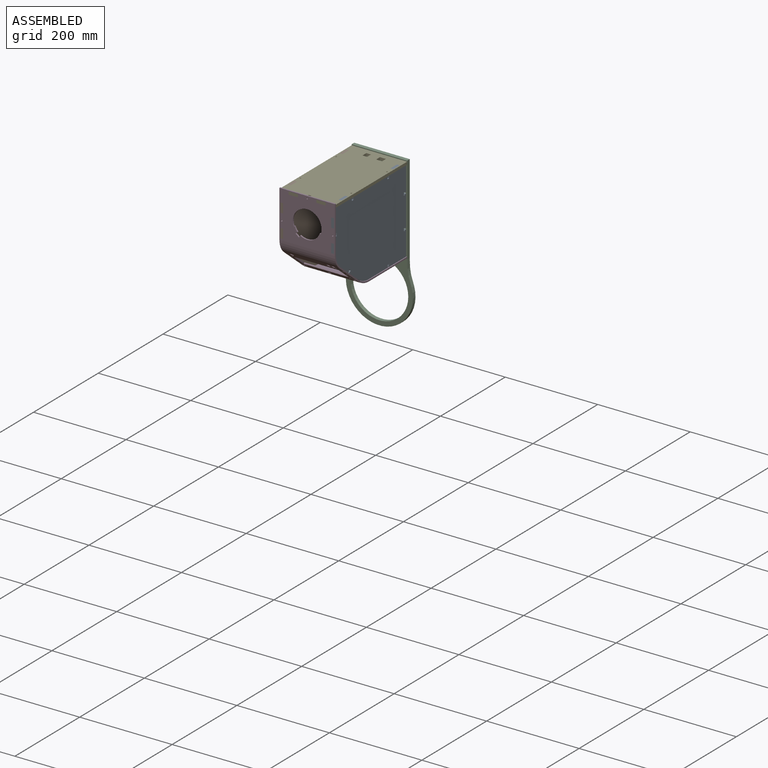
[diagram: assembled view]
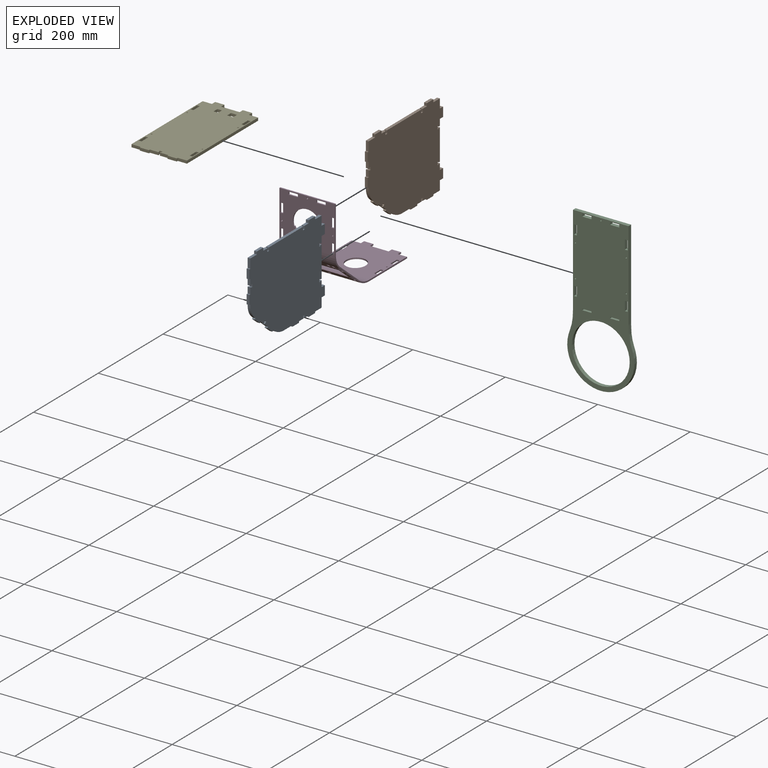
[diagram: exploded view]
GUIDED TOUR — MATED ASSEMBLY (Onshape document dd200ee3d19bba623b3a1f8c, AutoMate assembly dd200ee3d19bba623b3a1f8c_f7b9dfe9365630e57eda1b1d_85d5559fc0146a37507ad50d_default)

This assembly has 5 components, labeled P0..P4 below (a component is one placed occurrence of a part; the same part can appear more than once), held together by 12 mates. A mate is a constraint between two components; its type names the relative motion it leaves free:
  PLANAR — leaves sliding in the plane through the listed point (normal = the listed direction) and rotation about that normal free.
Axis/direction vectors are unit vectors and 'through' points are millimeter coordinates, both in the assembly's world frame.

MATES
  1. PLANAR "Planar 6": P4 <-> P1, direction (0.000, 0.000, -1.000) through (-156.96, -45.42, 177.71) mm
  2. PLANAR "Planar 11": P0 <-> P2, direction (-1.000, 0.000, 0.000) through (-104.93, 64.20, 137.71) mm
  3. PLANAR "Planar 12": P3 <-> P0, direction (0.000, 1.000, 0.000) through (-156.83, -155.80, 136.07) mm
  4. PLANAR "Planar 4": P4 <-> P0, direction (0.000, 0.000, -1.000) through (-156.96, -45.42, 177.71) mm
  5. PLANAR "Planar 9": P3 <-> P1, direction (0.000, 0.000, 1.000) through (-211.93, -157.30, 137.71) mm
  6. PLANAR "Planar 2": P0 <-> P4, direction (0.000, 1.000, 0.000) through (-101.93, -115.80, 180.71) mm
  7. PLANAR "Planar 1": P1 <-> P4, direction (0.000, 1.000, 0.000) through (-211.93, -115.80, 180.71) mm
  8. PLANAR "Planar 8": P3 <-> P1, direction (-1.000, 0.000, 0.000) through (-208.93, -157.30, 147.71) mm
  9. PLANAR "Planar 5": P4 <-> P1, direction (-1.000, 0.000, 0.000) through (-208.93, -115.80, 183.71) mm
  10. PLANAR "Planar 3": P4 <-> P0, direction (-1.000, 0.000, 0.000) through (-98.93, -125.80, 180.71) mm
  11. PLANAR "Planar 10": P4 <-> P2, direction (0.000, 0.000, 1.000) through (-156.96, -45.42, 183.71) mm
  12. PLANAR "Planar 7": P4 <-> P2, direction (0.000, 1.000, 0.000) through (-106.93, 64.20, 180.71) mm

ASSEMBLY ORDER
  1. P3 — the base component [order verified]
  2. P4 [order verified]
  3. P2 [order verified]
  4. P0 [order verified]
  5. P1 [order verified]
Order-tag legend:
  [order verified] — this step's position reverses a verified removal order: the component was checked to insert without passing through the ones already placed.

Of the 5 components, 2 carry the full construction recipe — the FeatureScript program that regenerates the part's solid from scratch; the rest are supplied as boundary geometry only.
Each toured component is shown spotlighted twice — in the assembled view, then in the exploded view, where a leader line traces a displaced component back to its assembled socket (saturated green if recipe-attached, orange if geometry-only; every other component desaturated gray) — followed by its recipe or geometry summary and the mates that hold it.
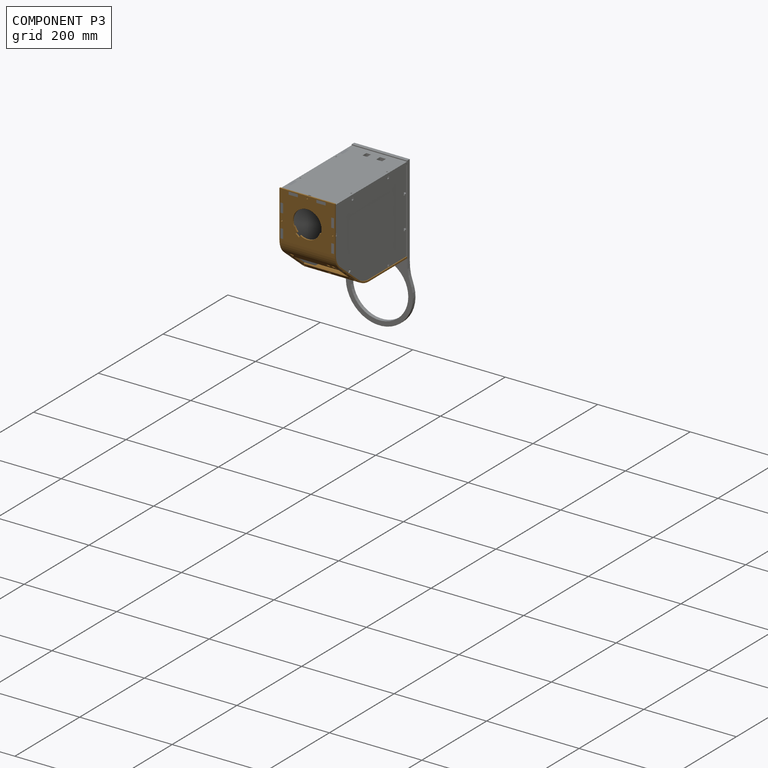
[diagram: component P3 — assembled]
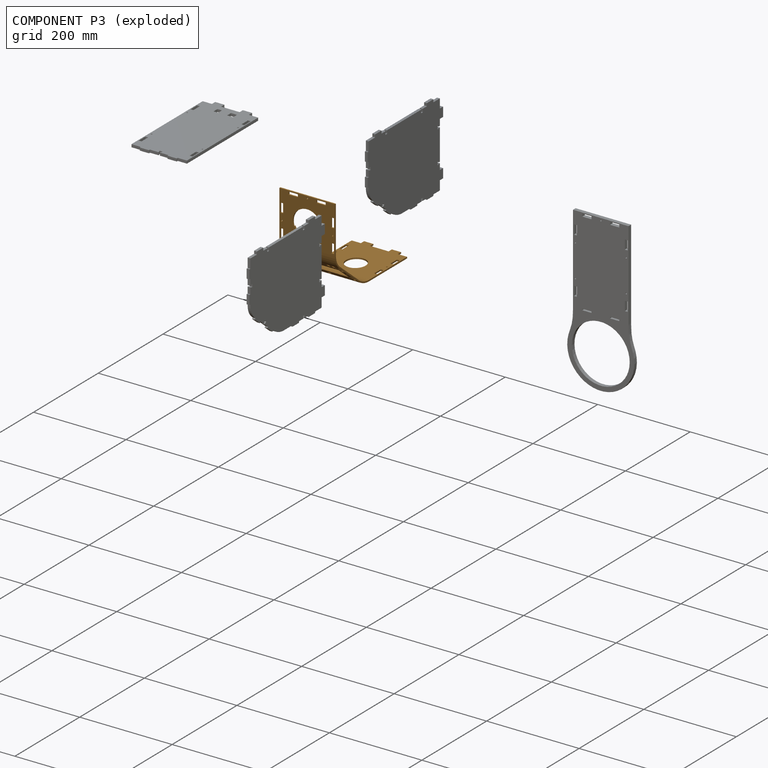
[diagram: component P3 — exploded]
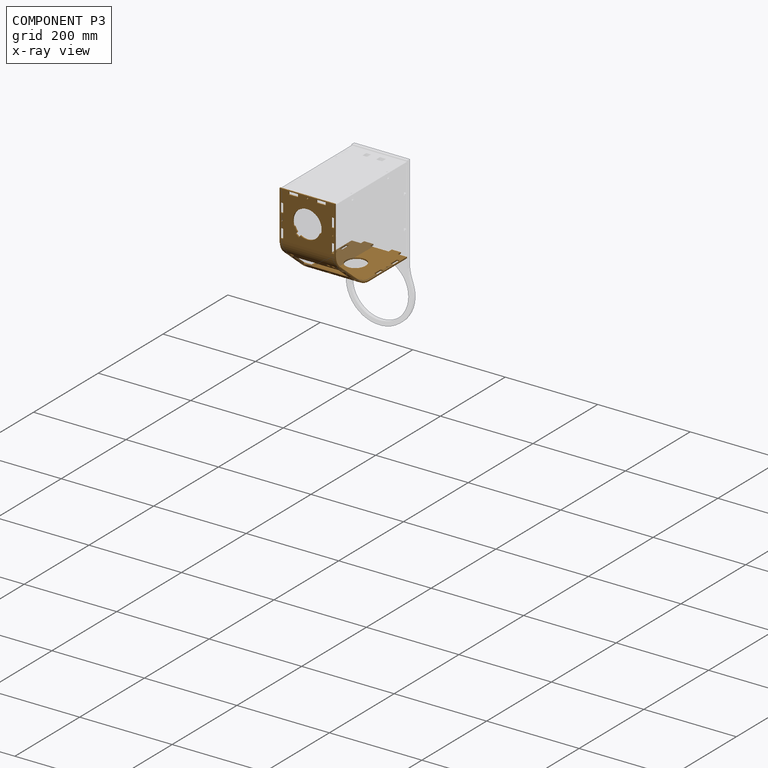
[diagram: component P3 — x-ray view]
COMPONENT P3 — geometry summary (no construction recipe available for this part):
  bounding box: 233.0 x 191.0 x 120.0 mm
  B-rep topology: 1 solid, 109 faces, 664 edges
  volume: 100900 mm^3 (2% of its bounding box)
  symmetry: mirror-symmetric across its y mid-plane
Held by: PLANAR mate "Planar 12" to P0; PLANAR mate "Planar 9" to P1; PLANAR mate "Planar 8" to P1.
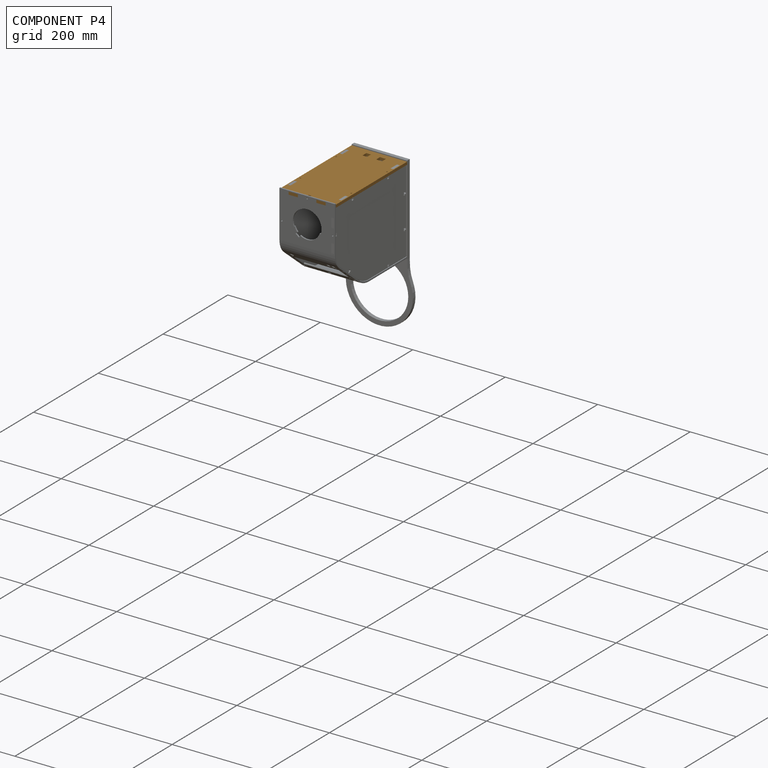
[diagram: component P4 — assembled]
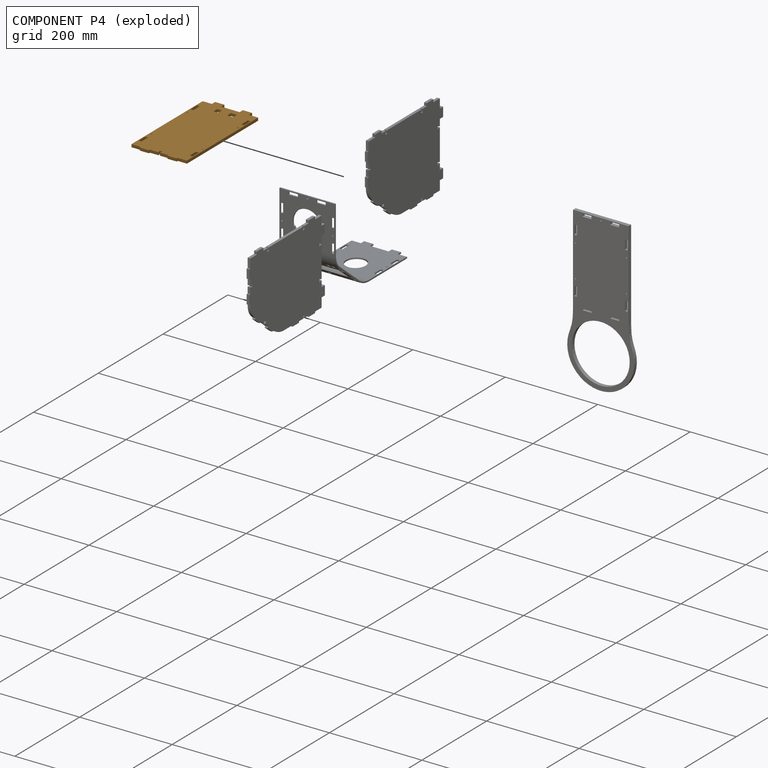
[diagram: component P4 — exploded]
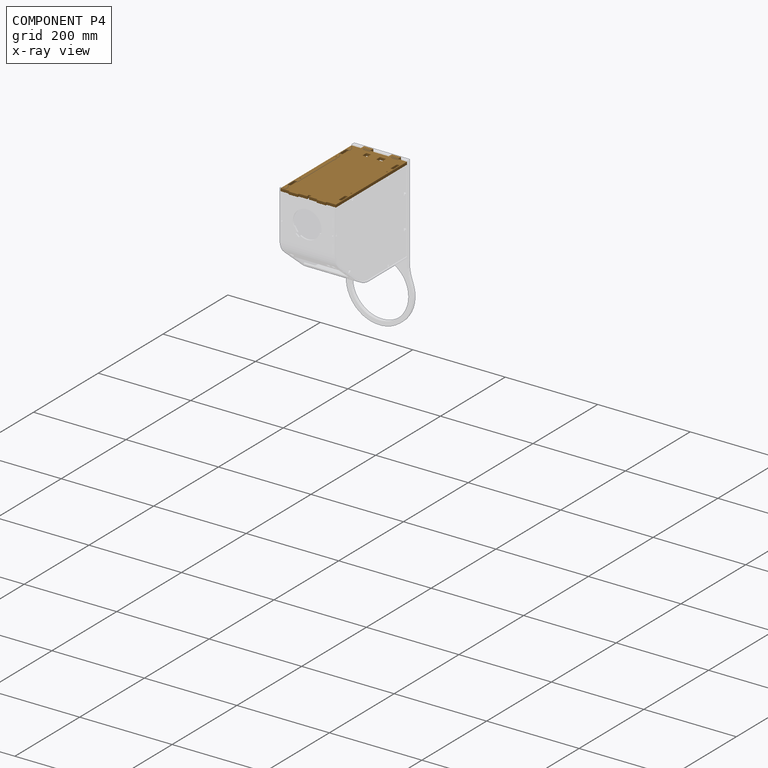
[diagram: component P4 — x-ray view]
COMPONENT P4 — geometry summary (no construction recipe available for this part):
  bounding box: 233.0 x 120.0 x 6.0 mm
  B-rep topology: 1 solid, 58 faces, 336 edges
  volume: 156654 mm^3 (93% of its bounding box)
  symmetry: mirror-symmetric across its y mid-plane
Held by: PLANAR mate "Planar 6" to P1; PLANAR mate "Planar 4" to P0; PLANAR mate "Planar 2" to P0; PLANAR mate "Planar 1" to P1; PLANAR mate "Planar 5" to P1; PLANAR mate "Planar 3" to P0; PLANAR mate "Planar 10" to P2; PLANAR mate "Planar 7" to P2.
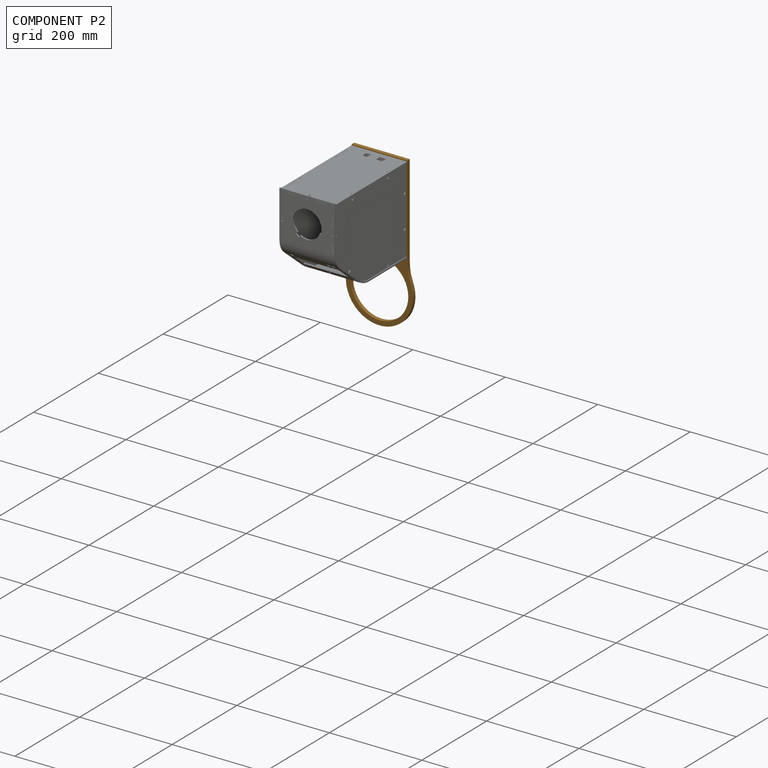
[diagram: component P2 — assembled]
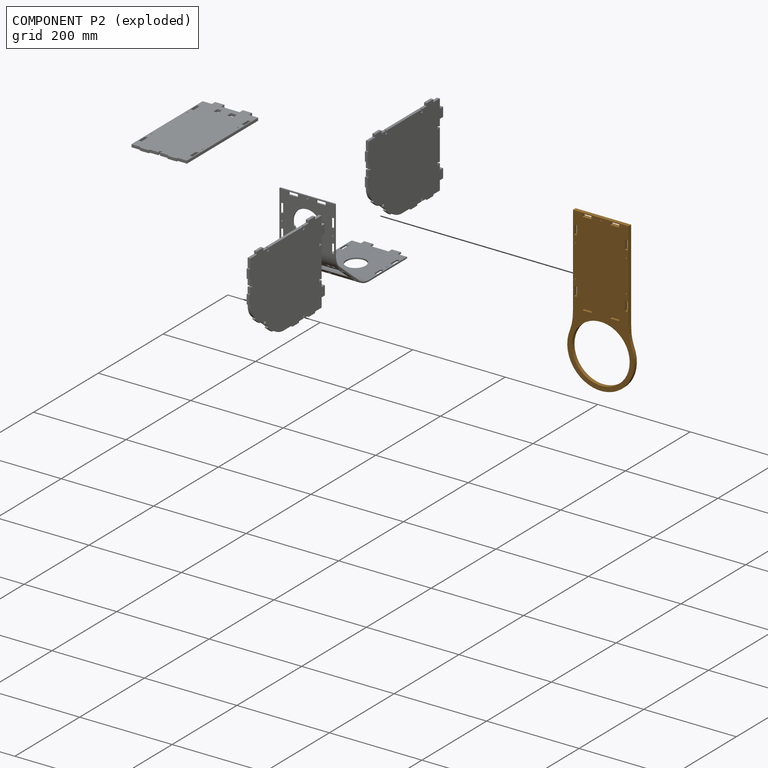
[diagram: component P2 — exploded]
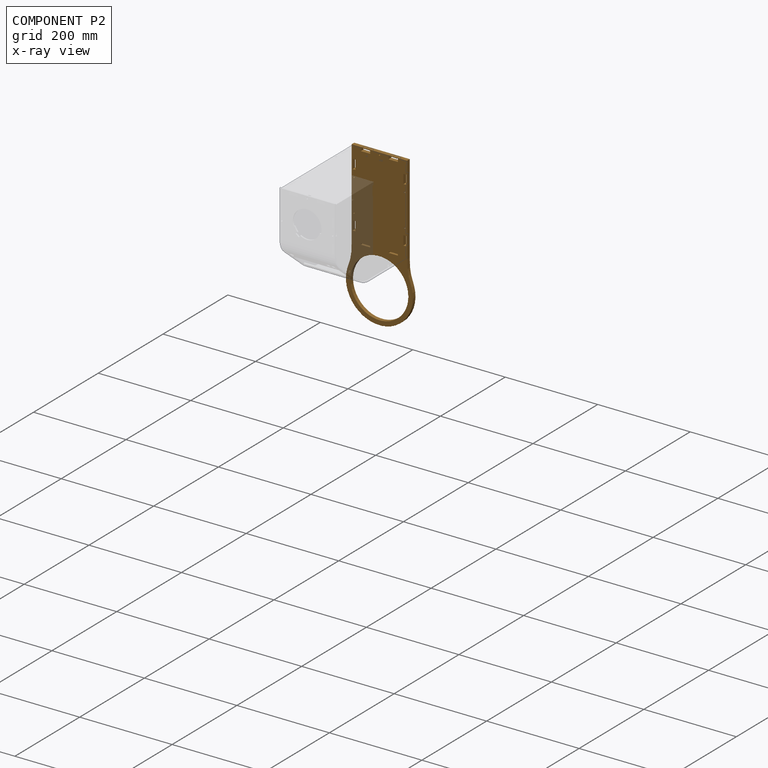
[diagram: component P2 — x-ray view]
COMPONENT P2 — geometry summary (no construction recipe available for this part):
  bounding box: 338.0 x 145.0 x 8.0 mm
  B-rep topology: 1 solid, 46 faces, 264 edges
  volume: 221985 mm^3 (57% of its bounding box)
  symmetry: 2-fold rotationally symmetric about the z axis; mirror-symmetric across its x mid-plane, y mid-plane
Held by: PLANAR mate "Planar 11" to P0; PLANAR mate "Planar 10" to P4; PLANAR mate "Planar 7" to P4.
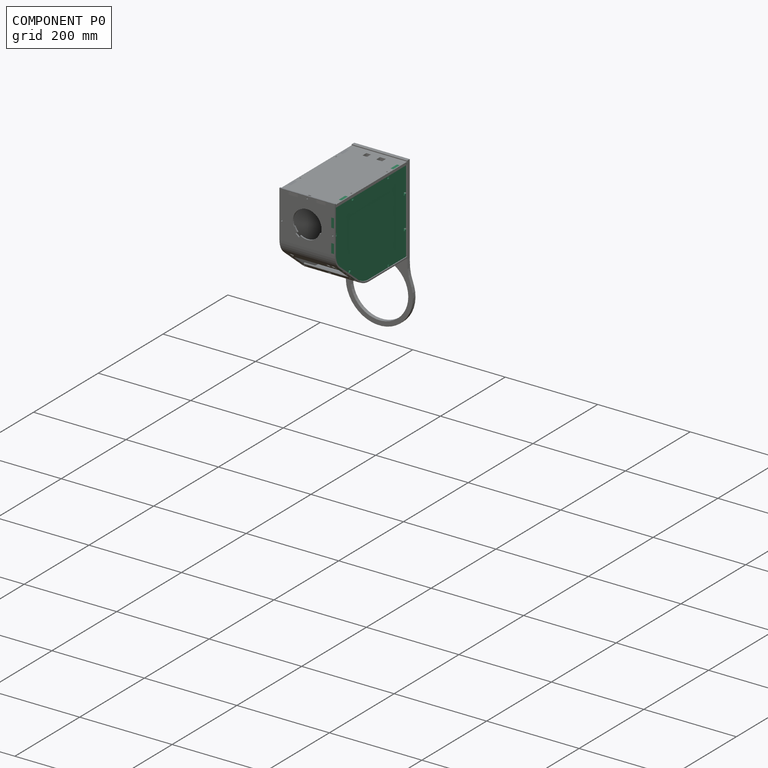
[diagram: component P0 — assembled]
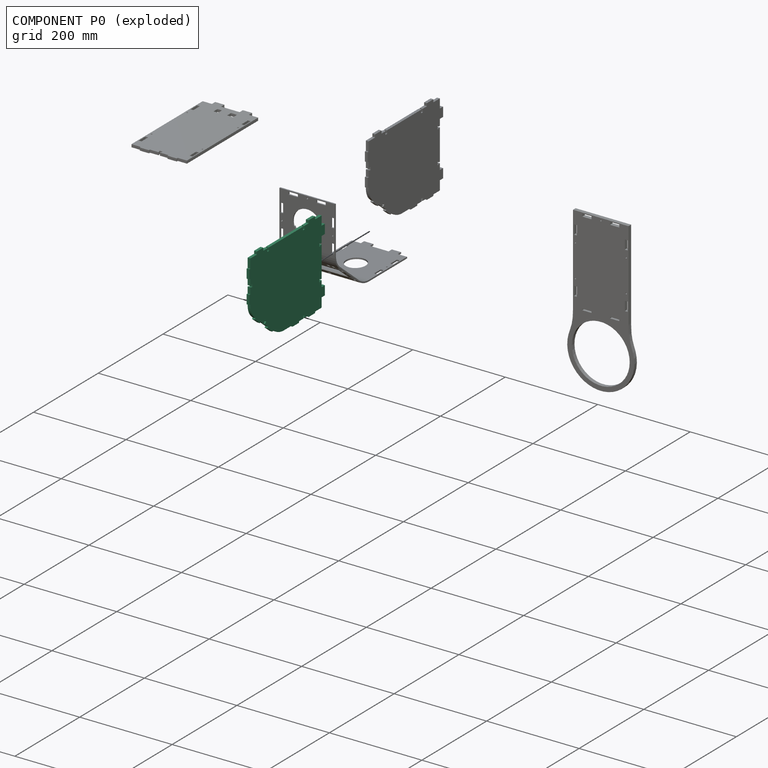
[diagram: component P0 — exploded]
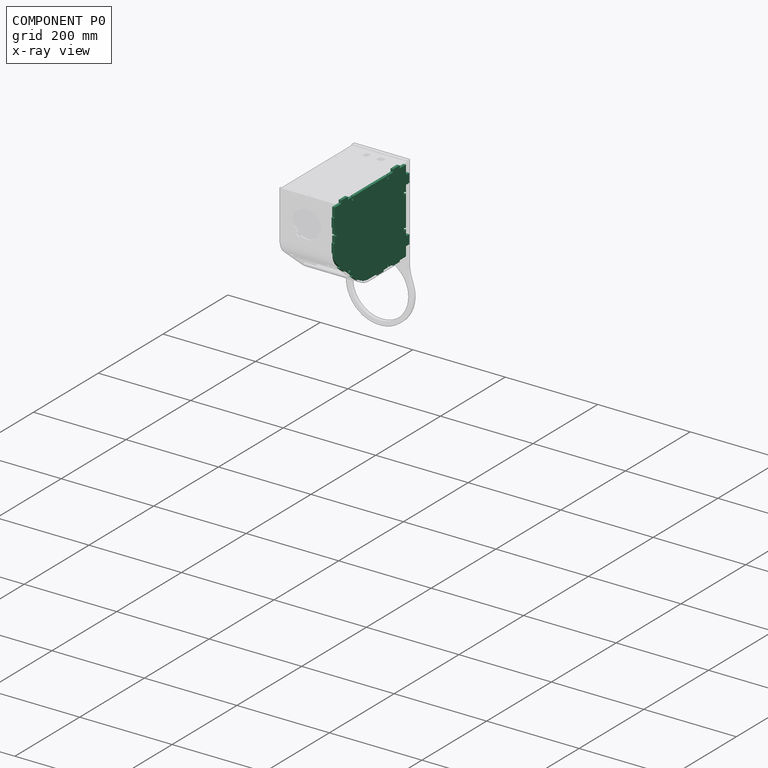
[diagram: component P0 — x-ray view]
COMPONENT P0 — recipe-attached (CADFS 00138585, mesh-verified: the recipe's output STEP matches this component's geometry to below the mesh-comparison resolution (tessellation chordal tolerance ~0.45 mm)).
Held by: PLANAR mate "Planar 11" to P2; PLANAR mate "Planar 12" to P3; PLANAR mate "Planar 4" to P4; PLANAR mate "Planar 2" to P4; PLANAR mate "Planar 3" to P4.
Construction recipe (FeatureScript — the CAD program that rebuilds this solid; sketch coordinates are in the units given by the * unit suffixes, e.g. mm):

FeatureScript 1758;
import(path : "onshape/std/geometry.fs", version : "1758.0");
import(path : "onshape/std/common.fs", version : "1758.0");
const mm = millimeter;
const VERTEX = EntityType.VERTEX;
const EDGE = EntityType.EDGE;
const FACE = EntityType.FACE;
const BODY = EntityType.BODY;
function v(x, y){return vector(x, y);}
function OD(order){return orderDisambiguation(order);}
function OSD(set){return originalSetDisambiguation(set);}
function TD(topology){return topologyDisambiguation(topology);}
function TDD(query){return trueDependencyDisambiguation(query);}
function sQuery(a, b, c) {return sketchEntityQuery(a, b, c);}

annotation { "Feature Type Name" : "Feature", "Feature Type Description" : "" }
export const myFeature = defineFeature(function(context is Context, id is Id, definition is map)
    precondition{}
    {
        {
            var Q0;
            Q0=qCreatedBy(makeId("Front.planeOp"),FACE);
            var sketch = newSketch(context, id + "F0", { "sketchPlane" : qUnion([Q0])});
            skLineSegment(sketch, "E0", {"start": v(0, 220) * mm, "end": v(20, 220) * mm});
            skLineSegment(sketch, "E1", {"start": v(20, 220) * mm, "end": v(20, 223) * mm});
            skLineSegment(sketch, "E2", {"start": v(20, 223) * mm, "end": v(40, 223) * mm});
            skLineSegment(sketch, "E3", {"start": v(40, 223) * mm, "end": v(40, 220) * mm});
            skLineSegment(sketch, "E4", {"start": v(40, 220) * mm, "end": v(53.5, 220) * mm});
            skLineSegment(sketch, "E5", {"start": v(53.5, 220) * mm, "end": v(53.5, 217.5) * mm});
            skLineSegment(sketch, "E6", {"start": v(53.5, 217.5) * mm, "end": v(52.25, 217.5) * mm});
            skLineSegment(sketch, "E7", {"start": v(52.25, 217.5) * mm, "end": v(52.25, 214) * mm});
            skLineSegment(sketch, "E8", {"start": v(52.25, 214) * mm, "end": v(57.75, 214) * mm});
            skLineSegment(sketch, "E9", {"start": v(57.75, 214) * mm, "end": v(57.75, 217.5) * mm});
            skLineSegment(sketch, "E10", {"start": v(57.75, 217.5) * mm, "end": v(56.5, 217.5) * mm});
            skLineSegment(sketch, "E11", {"start": v(56.5, 217.5) * mm, "end": v(56.5, 220) * mm});
            skLineSegment(sketch, "E12", {"start": v(56.5, 220) * mm, "end": v(70, 220) * mm});
            skLineSegment(sketch, "E13", {"start": v(70, 220) * mm, "end": v(70, 223) * mm});
            skLineSegment(sketch, "E14", {"start": v(70, 223) * mm, "end": v(90, 223) * mm});
            skLineSegment(sketch, "E15", {"start": v(90, 223) * mm, "end": v(90, 220) * mm});
            skLineSegment(sketch, "E16", {"start": v(90, 220) * mm, "end": v(93.33, 220) * mm});
            skLineSegment(sketch, "E17", {"start": v(0, 200) * mm, "end": v(-6, 200) * mm});
            skLineSegment(sketch, "E18", {"start": v(-6, 200) * mm, "end": v(-6, 180) * mm});
            skLineSegment(sketch, "E19", {"start": v(-6, 180) * mm, "end": v(0, 180) * mm});
            skLineSegment(sketch, "E20", {"start": v(0, 166.5) * mm, "end": v(3.5, 166.5) * mm});
            skLineSegment(sketch, "E21", {"start": v(3.5, 166.5) * mm, "end": v(3.5, 167.75) * mm});
            skLineSegment(sketch, "E22", {"start": v(3.5, 167.75) * mm, "end": v(7, 167.75) * mm});
            skLineSegment(sketch, "E23", {"start": v(7, 167.75) * mm, "end": v(7, 162.25) * mm});
            skLineSegment(sketch, "E24", {"start": v(7, 162.25) * mm, "end": v(3.5, 162.25) * mm});
            skLineSegment(sketch, "E25", {"start": v(3.5, 162.25) * mm, "end": v(3.5, 163.5) * mm});
            skLineSegment(sketch, "E26", {"start": v(3.5, 163.5) * mm, "end": v(0, 163.5) * mm});
            skLineSegment(sketch, "E27", {"start": v(0, 166.5) * mm, "end": v(0, 180) * mm});
            skLineSegment(sketch, "E28", {"start": v(-6, 180) * mm, "end": v(-6, 200) * mm});
            skLineSegment(sketch, "E29", {"start": v(0, 200) * mm, "end": v(0, 220) * mm});
            skPoint(sketch, "E30.visualSharp", {"position": v(110, 220) * mm});
            skArc(sketch, "E30.filletArc", {"start": v(120.5, 207.06) * mm, "mid": v(108.38, 216.6) * mm, "end": v(93.33, 220) * mm});
            skPoint(sketch, "E31.visualSharp", {"position": v(180, 135.15) * mm});
            skArc(sketch, "E31.filletArc", {"start": v(180, 116.03) * mm, "mid": v(177.12, 132.74) * mm, "end": v(168.82, 147.54) * mm});
            skLineSegment(sketch, "E32", {"start": v(0, 163.5) * mm, "end": v(0, 110) * mm});
            skLineSegment(sketch, "E33.MirrorCS", {"start": v(0, 0) * mm, "end": v(0, 0) * mm});
            skLineSegment(sketch, "E34", {"start": v(93.33, 185) * mm, "end": v(110, 220.02) * mm});
            skLineSegment(sketch, "E35", {"start": v(0, 110) * mm, "end": v(180, 110) * mm, "construction": true});
            skLineSegment(sketch, "E36.MirrorCS", {"start": v(0, 56.5) * mm, "end": v(0, 110) * mm});
            skLineSegment(sketch, "E37.MirrorCS", {"start": v(3.5, 57.75) * mm, "end": v(3.5, 56.5) * mm});
            skLineSegment(sketch, "E38.MirrorCS", {"start": v(3.5, 53.5) * mm, "end": v(3.5, 52.25) * mm});
            skLineSegment(sketch, "E39.MirrorCS", {"start": v(-6, 40) * mm, "end": v(0, 40) * mm});
            skLineSegment(sketch, "E40.MirrorCS", {"start": v(0, 20) * mm, "end": v(-6, 20) * mm});
            skLineSegment(sketch, "E41.MirrorCS", {"start": v(7, 52.25) * mm, "end": v(7, 57.75) * mm});
            skLineSegment(sketch, "E42.MirrorCS", {"start": v(7, 57.75) * mm, "end": v(3.5, 57.75) * mm});
            skLineSegment(sketch, "E43.MirrorCS", {"start": v(3.5, 52.25) * mm, "end": v(7, 52.25) * mm});
            skLineSegment(sketch, "E44.MirrorCS", {"start": v(3.5, 56.5) * mm, "end": v(0, 56.5) * mm});
            skLineSegment(sketch, "E45.MirrorCS", {"start": v(-6, 20) * mm, "end": v(-6, 40) * mm});
            skLineSegment(sketch, "E46.MirrorCS", {"start": v(0, 53.5) * mm, "end": v(0, 40) * mm});
            skLineSegment(sketch, "E47.MirrorCS", {"start": v(-6, 40) * mm, "end": v(-6, 20) * mm});
            skLineSegment(sketch, "E48.MirrorCS", {"start": v(0, 20) * mm, "end": v(0, 0) * mm});
            skLineSegment(sketch, "E49.MirrorCS", {"start": v(0, 53.5) * mm, "end": v(3.5, 53.5) * mm});
            skLineSegment(sketch, "E50.MirrorCS", {"start": v(143.67, 174.56) * mm, "end": v(144.45, 173.59) * mm});
            skLineSegment(sketch, "E51.MirrorCS", {"start": v(140.99, 177.86) * mm, "end": v(141.78, 176.89) * mm});
            skLineSegment(sketch, "E52.MirrorCS", {"start": v(156.45, 167.54) * mm, "end": v(154.12, 165.65) * mm});
            skLineSegment(sketch, "E53.MirrorCS", {"start": v(124.93, 206.36) * mm, "end": v(122.6, 204.47) * mm});
            skLineSegment(sketch, "E54.MirrorCS", {"start": v(144.45, 173.59) * mm, "end": v(141.74, 171.38) * mm});
            skLineSegment(sketch, "E55.MirrorCS", {"start": v(122.6, 204.47) * mm, "end": v(120.5, 207.06) * mm});
            skLineSegment(sketch, "E56.MirrorCS", {"start": v(135.2, 188.94) * mm, "end": v(137.54, 190.83) * mm});
            skLineSegment(sketch, "E57.MirrorCS", {"start": v(166.72, 150.12) * mm, "end": v(169.05, 152.01) * mm});
            skLineSegment(sketch, "E58.MirrorCS", {"start": v(138.27, 175.65) * mm, "end": v(140.99, 177.86) * mm});
            skLineSegment(sketch, "E59.MirrorCS", {"start": v(141.78, 176.89) * mm, "end": v(143.72, 178.46) * mm});
            skLineSegment(sketch, "E60.MirrorCS", {"start": v(143.72, 178.46) * mm, "end": v(135.2, 188.94) * mm});
            skLineSegment(sketch, "E61.MirrorCS", {"start": v(145.6, 176.13) * mm, "end": v(143.67, 174.56) * mm});
            skLineSegment(sketch, "E62.MirrorCS", {"start": v(137.54, 190.83) * mm, "end": v(124.93, 206.36) * mm});
            skLineSegment(sketch, "E63.MirrorCS", {"start": v(169.05, 152.01) * mm, "end": v(156.45, 167.54) * mm});
            skLineSegment(sketch, "E64.MirrorCS", {"start": v(154.12, 165.65) * mm, "end": v(145.6, 176.13) * mm});
            skLineSegment(sketch, "E65.MirrorCS", {"start": v(141.74, 171.38) * mm, "end": v(138.27, 175.65) * mm});
            skLineSegment(sketch, "E66", {"start": v(166.72, 150.12) * mm, "end": v(168.82, 147.54) * mm});
            skLineSegment(sketch, "E67", {"start": v(180, 116.03) * mm, "end": v(180, 110) * mm});
            skLineSegment(sketch, "E68", {"start": v(180, 110) * mm, "end": v(180, 90) * mm});
            skLineSegment(sketch, "E69", {"start": v(180, 90) * mm, "end": v(183, 90) * mm});
            skLineSegment(sketch, "E70", {"start": v(183, 90) * mm, "end": v(183, 70) * mm});
            skLineSegment(sketch, "E71", {"start": v(183, 70) * mm, "end": v(180, 70) * mm});
            skLineSegment(sketch, "E72", {"start": v(180, 70) * mm, "end": v(180, 56.5) * mm});
            skLineSegment(sketch, "E73", {"start": v(180, 56.5) * mm, "end": v(177.5, 56.5) * mm});
            skLineSegment(sketch, "E74", {"start": v(177.5, 56.5) * mm, "end": v(177.5, 57.75) * mm});
            skLineSegment(sketch, "E75", {"start": v(177.5, 57.75) * mm, "end": v(174, 57.75) * mm});
            skLineSegment(sketch, "E76", {"start": v(174, 57.75) * mm, "end": v(174, 52.25) * mm});
            skLineSegment(sketch, "E77", {"start": v(174, 52.25) * mm, "end": v(177.5, 52.25) * mm});
            skLineSegment(sketch, "E78", {"start": v(177.5, 52.25) * mm, "end": v(177.5, 53.5) * mm});
            skLineSegment(sketch, "E79", {"start": v(177.5, 53.5) * mm, "end": v(180, 53.5) * mm});
            skLineSegment(sketch, "E80", {"start": v(180, 53.5) * mm, "end": v(180, 40) * mm});
            skLineSegment(sketch, "E81", {"start": v(180, 40) * mm, "end": v(183, 40) * mm});
            skLineSegment(sketch, "E82", {"start": v(183, 40) * mm, "end": v(183, 20) * mm});
            skLineSegment(sketch, "E83", {"start": v(183, 20) * mm, "end": v(180, 20) * mm});
            skLineSegment(sketch, "E84", {"start": v(180, 20) * mm, "end": v(180, 0) * mm});
            skLineSegment(sketch, "E85.MirrorCS", {"start": v(20, 0) * mm, "end": v(20, -10) * mm});
            skLineSegment(sketch, "E86.MirrorCS", {"start": v(40, -10) * mm, "end": v(40, 0) * mm});
            skLineSegment(sketch, "E87.MirrorCS", {"start": v(20, -10) * mm, "end": v(40, -10) * mm});
            skLineSegment(sketch, "E88", {"start": v(90, 0) * mm, "end": v(90, 110) * mm, "construction": true});
            skLineSegment(sketch, "E89.MirrorCS", {"start": v(160, -10) * mm, "end": v(140, -10) * mm});
            skLineSegment(sketch, "E90.MirrorCS", {"start": v(160, 0) * mm, "end": v(160, -10) * mm});
            skLineSegment(sketch, "E91", {"start": v(0, 0) * mm, "end": v(20, 0) * mm});
            skLineSegment(sketch, "E92", {"start": v(160, 0) * mm, "end": v(180, 0) * mm});
            skLineSegment(sketch, "E93", {"start": v(40, 220) * mm, "end": v(70, 220) * mm, "construction": true});
            skLineSegment(sketch, "E94", {"start": v(55, 220) * mm, "end": v(55, 212.29) * mm, "construction": true});
            skPoint(sketch, "E95", {"position": v(55, 214) * mm});
            skLineSegment(sketch, "E96", {"start": v(7, 165) * mm, "end": v(-15.94, 165) * mm, "construction": true});
            skLineSegment(sketch, "E97", {"start": v(174, 55) * mm, "end": v(193.5, 55) * mm, "construction": true});
            skLineSegment(sketch, "E98.MirrorCS", {"start": v(55, 0) * mm, "end": v(55, 7.71) * mm, "construction": true});
            skLineSegment(sketch, "E99", {"start": v(40, 0) * mm, "end": v(53.5, 0) * mm});
            skLineSegment(sketch, "E100", {"start": v(53.5, 0) * mm, "end": v(53.5, 3.5) * mm});
            skLineSegment(sketch, "E101", {"start": v(53.5, 3.5) * mm, "end": v(52.25, 3.5) * mm});
            skLineSegment(sketch, "E102", {"start": v(52.25, 3.5) * mm, "end": v(52.25, 7) * mm});
            skLineSegment(sketch, "E103", {"start": v(52.25, 7) * mm, "end": v(57.75, 7) * mm});
            skLineSegment(sketch, "E104", {"start": v(57.75, 7) * mm, "end": v(57.75, 3.5) * mm});
            skLineSegment(sketch, "E105", {"start": v(57.75, 3.5) * mm, "end": v(56.5, 3.5) * mm});
            skLineSegment(sketch, "E106", {"start": v(56.5, 3.5) * mm, "end": v(56.5, 0) * mm});
            skLineSegment(sketch, "E107", {"start": v(56.5, 0) * mm, "end": v(90, 0) * mm});
            skPoint(sketch, "E108", {"position": v(55, 7) * mm});
            skLineSegment(sketch, "E109.MirrorCS", {"start": v(127.75, 3.5) * mm, "end": v(127.75, 7) * mm});
            skLineSegment(sketch, "E110.MirrorCS", {"start": v(122.25, 7) * mm, "end": v(122.25, 3.5) * mm});
            skLineSegment(sketch, "E111.MirrorCS", {"start": v(122.25, 3.5) * mm, "end": v(123.5, 3.5) * mm});
            skLineSegment(sketch, "E112.MirrorCS", {"start": v(126.5, 3.5) * mm, "end": v(127.75, 3.5) * mm});
            skLineSegment(sketch, "E113.MirrorCS", {"start": v(127.75, 7) * mm, "end": v(122.25, 7) * mm});
            skLineSegment(sketch, "E114.MirrorCS", {"start": v(125, 0) * mm, "end": v(125, 7.71) * mm, "construction": true});
            skPoint(sketch, "E115.MirrorP", {"position": v(125, 7) * mm});
            skLineSegment(sketch, "E116.MirrorCS", {"start": v(140, 0) * mm, "end": v(126.5, 0) * mm});
            skLineSegment(sketch, "E117.MirrorCS", {"start": v(140, -10) * mm, "end": v(140, 0) * mm});
            skLineSegment(sketch, "E118.MirrorCS", {"start": v(123.5, 3.5) * mm, "end": v(123.5, 0) * mm});
            skLineSegment(sketch, "E119.MirrorCS", {"start": v(126.5, 0) * mm, "end": v(126.5, 3.5) * mm});
            skLineSegment(sketch, "E120.MirrorCS", {"start": v(123.5, 0) * mm, "end": v(90, 0) * mm});
            skSolve(sketch);
        }
        {
            var Q0;
            Q0=makeQuery(id+"F0.imprint","IMPRINT",FACE,{"disambiguationData":[TD([[makeQuery(id+"F0.imprint","IMPRINT",EDGE,{"derivedFrom":sQuery(id+"F0.wireOp",EDGE,"E0")}),-1.0]])]});
            var Q1;
            Q1=makeQuery(id+"F0.imprint","IMPRINT",FACE,{"disambiguationData":[TD([[makeQuery(id+"F0.imprint","IMPRINT",EDGE,{"derivedFrom":sQuery(id+"F0.wireOp",EDGE,"7zwvuXE3-DbRT-44SM-j9et-4jxJWr9VXILD")}),-1.0]])]});
            extrude(context, id + "F1", {"entities" : qUnion([Q0, Q1]), "depth" : 6 * mm});
        }
    });
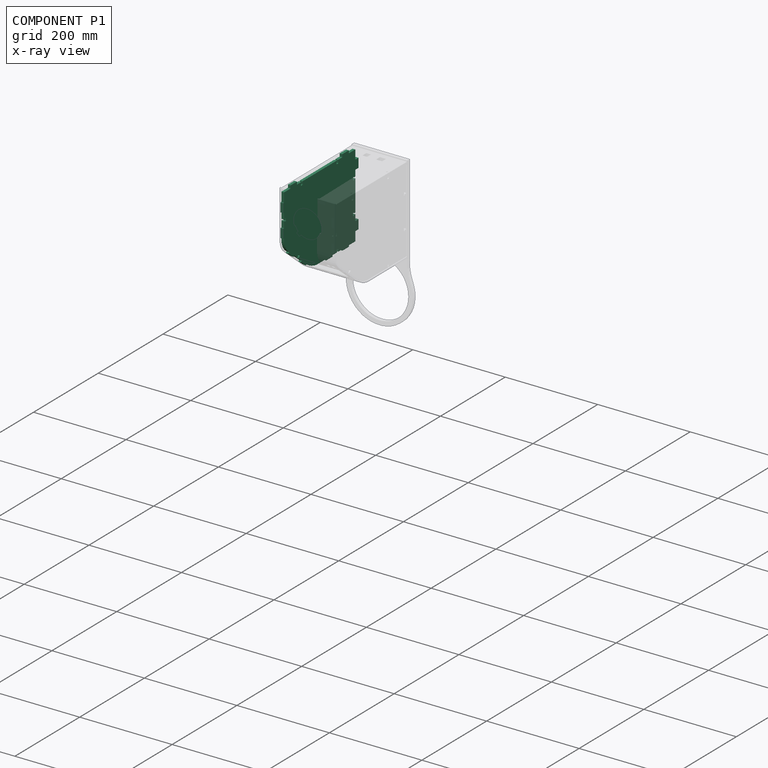
[diagram: component P1 — x-ray view]
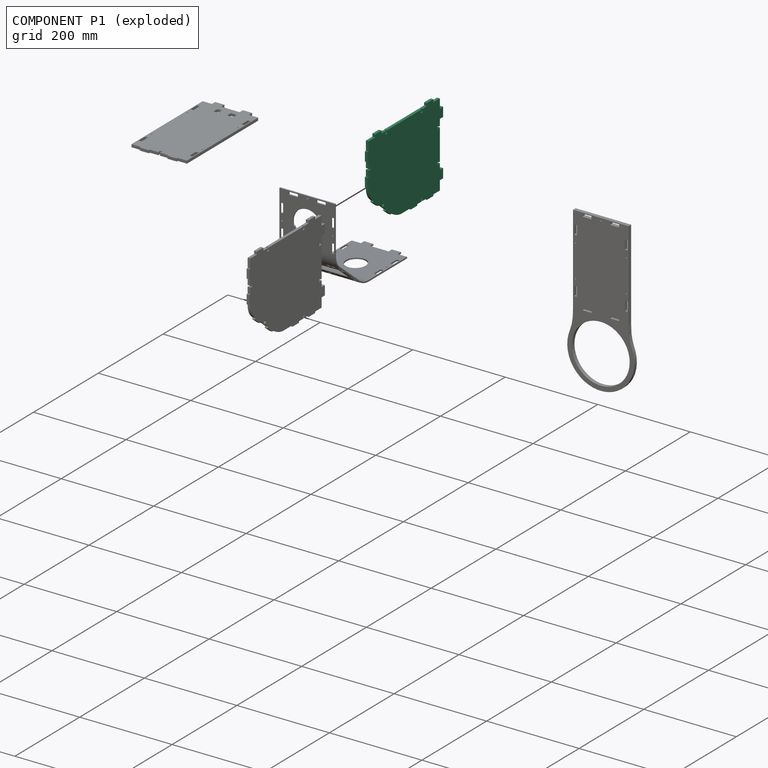
[diagram: component P1 — exploded]
COMPONENT P1 — same part as P0 (CADFS 00138585); its construction recipe is shown at P0.
Held by: PLANAR mate "Planar 6" to P4; PLANAR mate "Planar 9" to P3; PLANAR mate "Planar 1" to P4; PLANAR mate "Planar 8" to P3; PLANAR mate "Planar 5" to P4.
PROVENANCE & LICENSES
Assembly (occurrences, transforms, mates, per-part STEP geometry): AutoMate dataset, Zenodo record 7776208, CC0.
Construction recipes: CADFS (HuggingFace VladPyatov/CADFS, CC-BY-4.0, layered over the ABC dataset), FeatureScript reconstruction programs keyed by ABC model id.
Join: ABC meta listings map ABC model id -> Onshape documentId; within a shared document, parts are matched by geometric signature (bounding-box dims + volume at 0.1% relative tolerance, exact B-rep face/solid counts).
Verification: 2 of this assembly's 5 components carry a recipe attachment, and every attachment is mesh-verified: the CADFS STEP and the AutoMate member STEP were compared as meshes in their shared local frame (symmetric sampled-point-to-mesh distance); worst across the 2 attachments: below the mesh-comparison resolution (tessellation chordal tolerance ~0.45 mm) on a 300 mm part.
Renders: orthographic iso camera (az 35 / el 25); the floor grid conveys scale (grid pitch printed in each image; no ruler). In the exploded view each component is displaced by its stored offset vector: the offsets alone carry the explosion direction (mate normal/axis signs are not orientation cues and do not encode it), and separation distances are assigned per mate-chain, not proportionally to assembly-order depth.
